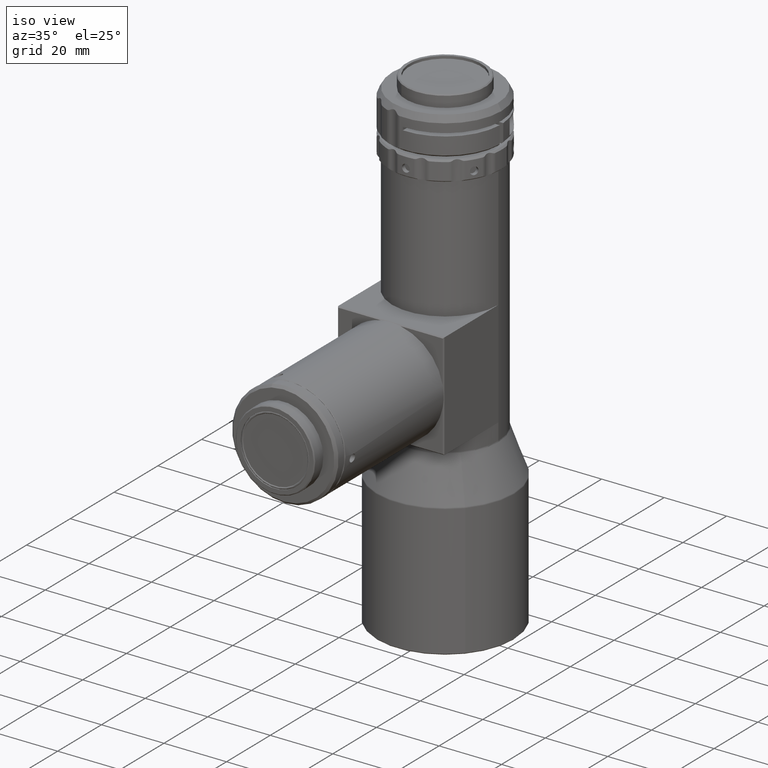
[diagram: clean part render]
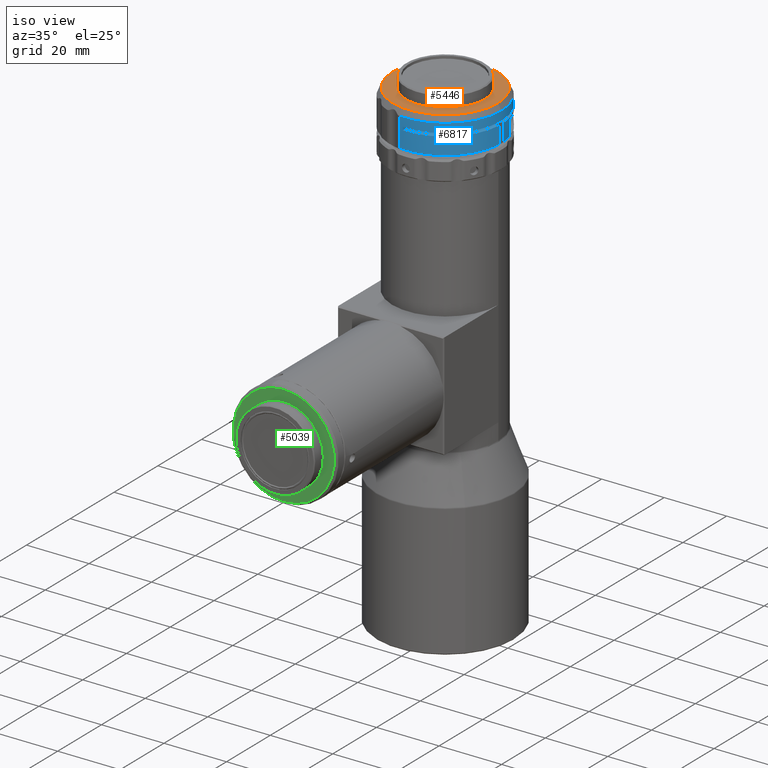
[diagram: same view with three faces highlighted in distinct colors, each labeled with its STEP entity id]
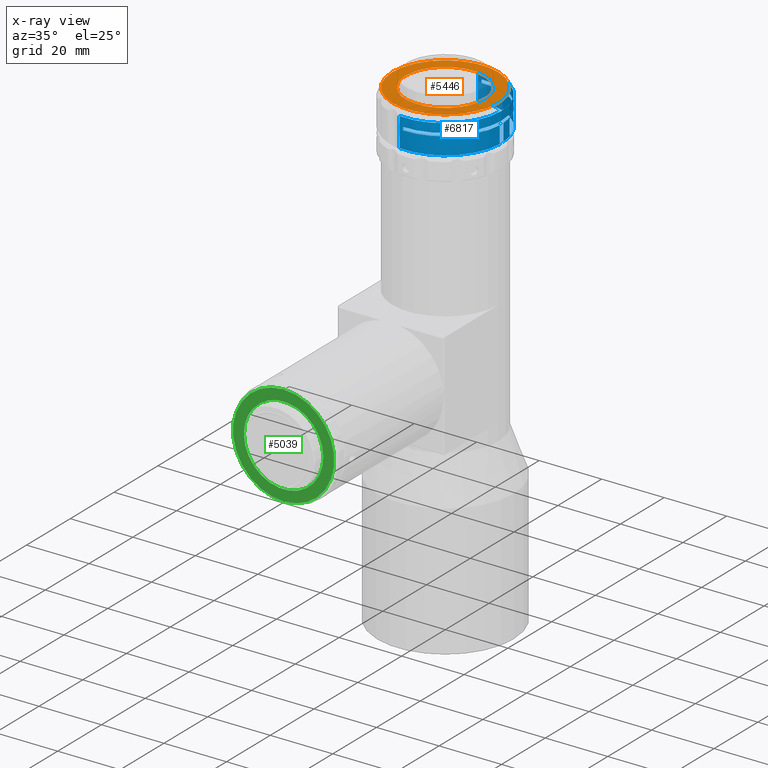
[diagram: x-ray of the same camera — body ghosted, the three highlighted faces saturated]
A machine part, iso view with three faces highlighted in distinct colors.
The next image is the same camera in x-ray (body ghosted, the three faces saturated) — at least one of them is partly hidden behind the body in this view.
Their STEP definitions:

[orange] entity #5446 — the highlighted planar face has unit normal (0, 0, -1).
#347 = DIRECTION ( 'NONE',  ( 2.463942195970224100E-016, 2.161748815651533200E-017, -1.000000000000000000 ) ) ;
#613 = EDGE_LOOP ( 'NONE', ( #3578, #7807 ) ) ;
#1088 = DIRECTION ( 'NONE',  ( -2.463942195970224100E-016, -2.161748815651533200E-017, 1.000000000000000000 ) ) ;
#1170 = ORIENTED_EDGE ( 'NONE', *, *, #7407, .F. ) ;
#1217 = VERTEX_POINT ( 'NONE', #2162 ) ;
#1938 = CARTESIAN_POINT ( 'NONE',  ( -1.294106439956090900E-014, -5.514569573549637300E-014, 98.14130850271087100 ) ) ;
#2041 = DIRECTION ( 'NONE',  ( -1.000000000000000000, 0.0000000000000000000, 0.0000000000000000000 ) ) ;
#2101 = VERTEX_POINT ( 'NONE', #4093 ) ;
#2130 = CARTESIAN_POINT ( 'NONE',  ( -1.294106439956089400E-014, -5.514569573549637300E-014, 98.14130850271087100 ) ) ;
#2162 = CARTESIAN_POINT ( 'NONE',  ( -16.84529946162077600, -5.478154267389183200E-014, 98.14130850271087100 ) ) ;
#2619 = EDGE_CURVE ( 'NONE', #6270, #2101, #4076, .T. ) ;
#2642 = DIRECTION ( 'NONE',  ( -1.000000000000000000, 0.0000000000000000000, 0.0000000000000000000 ) ) ;
#2843 = AXIS2_PLACEMENT_3D ( 'NONE', #5073, #1088, #2642 ) ;
#3076 = DIRECTION ( 'NONE',  ( 2.463942195970224100E-016, 2.161748815651533200E-017, -1.000000000000000000 ) ) ;
#3371 = CIRCLE ( 'NONE', #2843, 12.69999999999999900 ) ;
#3578 = ORIENTED_EDGE ( 'NONE', *, *, #7078, .F. ) ;
#3676 = EDGE_CURVE ( 'NONE', #1217, #5986, #4455, .T. ) ;
#3845 = DIRECTION ( 'NONE',  ( -1.000000000000000000, 2.161748815651540900E-017, 0.0000000000000000000 ) ) ;
#3924 = CARTESIAN_POINT ( 'NONE',  ( -6.373982340061597400, -10.98464151115475800, 98.14130850271087100 ) ) ;
#4076 = CIRCLE ( 'NONE', #6727, 12.69999999999999900 ) ;
#4093 = CARTESIAN_POINT ( 'NONE',  ( 6.373982340061568900, 10.98464151115464600, 98.14130850271087100 ) ) ;
#4455 = CIRCLE ( 'NONE', #4864, 16.84529946162076200 ) ;
#4551 = ORIENTED_EDGE ( 'NONE', *, *, #3676, .F. ) ;
#4799 = CARTESIAN_POINT ( 'NONE',  ( -1.294106439956089400E-014, -5.514569573549637300E-014, 98.14130850271087100 ) ) ;
#4864 = AXIS2_PLACEMENT_3D ( 'NONE', #2130, #3076, #3845 ) ;
#4898 = AXIS2_PLACEMENT_3D ( 'NONE', #4799, #8098, #10550 ) ;
#5071 = CARTESIAN_POINT ( 'NONE',  ( 16.84529946162075100, -5.336705294900052500E-014, 98.14130850271087100 ) ) ;
#5073 = CARTESIAN_POINT ( 'NONE',  ( -1.294106439956090900E-014, -5.514569573549637300E-014, 98.14130850271087100 ) ) ;
#5318 = AXIS2_PLACEMENT_3D ( 'NONE', #6098, #347, #8527 ) ;
#5446 = ADVANCED_FACE ( 'NONE', ( #7868, #5451 ), #7585, .F. ) ;
#5451 = FACE_OUTER_BOUND ( 'NONE', #5868, .T. ) ;
#5868 = EDGE_LOOP ( 'NONE', ( #4551, #1170 ) ) ;
#5986 = VERTEX_POINT ( 'NONE', #5071 ) ;
#6098 = CARTESIAN_POINT ( 'NONE',  ( -1.260189495805402300E-014, 16.84529946162070900, 98.14130850271087100 ) ) ;
#6120 = DIRECTION ( 'NONE',  ( -2.463942195970224100E-016, -2.161748815651533200E-017, 1.000000000000000000 ) ) ;
#6270 = VERTEX_POINT ( 'NONE', #3924 ) ;
#6727 = AXIS2_PLACEMENT_3D ( 'NONE', #1938, #6120, #2041 ) ;
#7078 = EDGE_CURVE ( 'NONE', #2101, #6270, #3371, .T. ) ;
#7407 = EDGE_CURVE ( 'NONE', #5986, #1217, #8215, .T. ) ;
#7585 = PLANE ( 'NONE',  #5318 ) ;
#7807 = ORIENTED_EDGE ( 'NONE', *, *, #2619, .F. ) ;
#7868 = FACE_BOUND ( 'NONE', #613, .T. ) ;
#8098 = DIRECTION ( 'NONE',  ( 2.463942195970224100E-016, 2.161748815651533200E-017, -1.000000000000000000 ) ) ;
#8215 = CIRCLE ( 'NONE', #4898, 16.84529946162076200 ) ;
#8527 = DIRECTION ( 'NONE',  ( -1.000000000000000000, 2.161748815651533200E-017, -2.463942195970224100E-016 ) ) ;
#10550 = DIRECTION ( 'NONE',  ( -1.000000000000000000, 2.161748815651540900E-017, 0.0000000000000000000 ) ) ;

[blue] entity #6817 — the highlighted cylindrical surface (partial cylindrical patch) has radius 18 mm, axis along (0, 0, -1).
#25 = CARTESIAN_POINT ( 'NONE',  ( 15.39999999999999000, 9.318798205777346400, 87.14130850271087100 ) ) ;
#44 = LINE ( 'NONE', #6223, #433 ) ;
#49 = EDGE_CURVE ( 'NONE', #7548, #10049, #2143, .T. ) ;
#117 = VERTEX_POINT ( 'NONE', #2863 ) ;
#126 = CARTESIAN_POINT ( 'NONE',  ( -1.023072798399364900E-014, -5.490790336577470300E-014, 87.14130850271087100 ) ) ;
#185 = CIRCLE ( 'NONE', #3396, 18.00000000000000000 ) ;
#208 = CARTESIAN_POINT ( 'NONE',  ( -1.015680971811454100E-014, -5.490141811932775300E-014, 86.84130850271087400 ) ) ;
#255 = CARTESIAN_POINT ( 'NONE',  ( -1.175837214549518600E-014, -5.504193179234510000E-014, 93.34130850271085900 ) ) ;
#331 = ORIENTED_EDGE ( 'NONE', *, *, #871, .T. ) ;
#373 = CARTESIAN_POINT ( 'NONE',  ( -1.141342023805935200E-014, -5.501166730892597700E-014, 91.94130850271085400 ) ) ;
#376 = CARTESIAN_POINT ( 'NONE',  ( 13.73189169664074600, 11.63893459891165300, 91.27497873940394900 ) ) ;
#418 = VECTOR ( 'NONE', #5874, 1000.000000000000000 ) ;
#433 = VECTOR ( 'NONE', #9437, 1000.000000000000000 ) ;
#546 = LINE ( 'NONE', #5763, #418 ) ;
#590 = CARTESIAN_POINT ( 'NONE',  ( -1.003361260831602900E-014, -5.489060937524949300E-014, 86.34130850271085900 ) ) ;
#603 = CIRCLE ( 'NONE', #9645, 18.00000000000000000 ) ;
#619 = DIRECTION ( 'NONE',  ( -1.000000000000000000, 2.161748815651542700E-017, 0.0000000000000000000 ) ) ;
#689 = DIRECTION ( 'NONE',  ( 2.463942195970224100E-016, 2.161748815651533200E-017, -1.000000000000000000 ) ) ;
#740 = EDGE_CURVE ( 'NONE', #117, #4113, #603, .T. ) ;
#749 = CARTESIAN_POINT ( 'NONE',  ( 17.98221343439122000, 0.7999999999999448700, 92.34130850271087400 ) ) ;
#821 = CARTESIAN_POINT ( 'NONE',  ( -2.101199788604772400, -17.87693931992749400, 86.84130850271087400 ) ) ;
#871 = EDGE_CURVE ( 'NONE', #5311, #6888, #9849, .T. ) ;
#992 = DIRECTION ( 'NONE',  ( 2.463942195970224100E-016, 2.161748815651533200E-017, -1.000000000000000000 ) ) ;
#1097 = CARTESIAN_POINT ( 'NONE',  ( 13.13619749648753500, 12.30635500989819800, 88.71828045628531400 ) ) ;
#1114 = LINE ( 'NONE', #9914, #2246 ) ;
#1168 = CARTESIAN_POINT ( 'NONE',  ( 14.46284105832442900, 10.71762024261757600, 87.32762184108011600 ) ) ;
#1188 = EDGE_CURVE ( 'NONE', #5666, #117, #9469, .T. ) ;
#1204 = VERTEX_POINT ( 'NONE', #3639 ) ;
#1284 = VERTEX_POINT ( 'NONE', #2289 ) ;
#1320 = CARTESIAN_POINT ( 'NONE',  ( -1.000000000000012000, -17.97220075561148500, 92.34130850271087400 ) ) ;
#1418 = EDGE_CURVE ( 'NONE', #9223, #3102, #8704, .T. ) ;
#1563 = CARTESIAN_POINT ( 'NONE',  ( -1.151197792589816300E-014, -5.502031430418858500E-014, 92.34130850271087400 ) ) ;
#1598 = DIRECTION ( 'NONE',  ( -1.000000000000000000, 2.161748815651542700E-017, 0.0000000000000000000 ) ) ;
#1627 = DIRECTION ( 'NONE',  ( -1.000000000000000000, 2.161748815651542700E-017, 0.0000000000000000000 ) ) ;
#1678 = ORIENTED_EDGE ( 'NONE', *, *, #8008, .F. ) ;
#1721 = CARTESIAN_POINT ( 'NONE',  ( -2.101199788604774600, -17.87693931992749400, 96.14130850271087100 ) ) ;
#1802 = VECTOR ( 'NONE', #10030, 1000.000000000000000 ) ;
#1917 = CARTESIAN_POINT ( 'NONE',  ( 12.99995471710555600, 12.44994688171525100, 89.43597379886495000 ) ) ;
#1947 = ORIENTED_EDGE ( 'NONE', *, *, #8066, .F. ) ;
#1952 = DIRECTION ( 'NONE',  ( -2.463942195970224100E-016, -2.161748815651533200E-017, 1.000000000000000000 ) ) ;
#1987 = ORIENTED_EDGE ( 'NONE', *, *, #740, .T. ) ;
#1993 = CARTESIAN_POINT ( 'NONE',  ( 13.03493637566578100, 12.41333333399717600, 89.11971181505400400 ) ) ;
#2005 = EDGE_LOOP ( 'NONE', ( #4278, #8730, #1947, #1678 ) ) ;
#2022 = CARTESIAN_POINT ( 'NONE',  ( 14.09580622404535400, 11.19577570137284900, 91.56167563274348700 ) ) ;
#2143 = CIRCLE ( 'NONE', #8269, 18.00000000000000000 ) ;
#2203 = CIRCLE ( 'NONE', #2368, 18.00000000000000000 ) ;
#2233 = AXIS2_PLACEMENT_3D ( 'NONE', #590, #7937, #8080 ) ;
#2246 = VECTOR ( 'NONE', #992, 1000.000000000000000 ) ;
#2289 = CARTESIAN_POINT ( 'NONE',  ( -1.000000000000011800, 17.97220075561138900, 92.34130850271087400 ) ) ;
#2290 = VERTEX_POINT ( 'NONE', #25 ) ;
#2368 = AXIS2_PLACEMENT_3D ( 'NONE', #126, #3408, #5806 ) ;
#2448 = ORIENTED_EDGE ( 'NONE', *, *, #1188, .T. ) ;
#2500 = CARTESIAN_POINT ( 'NONE',  ( -1.000000000000012000, 17.97220075561138900, 93.34130850271085900 ) ) ;
#2520 = DIRECTION ( 'NONE',  ( 2.463942195970224100E-016, 2.161748815651533200E-017, -1.000000000000000000 ) ) ;
#2526 = VERTEX_POINT ( 'NONE', #749 ) ;
#2691 = CARTESIAN_POINT ( 'NONE',  ( 14.09313028830381700, 11.19915853133355700, 87.52260336358595800 ) ) ;
#2703 = DIRECTION ( 'NONE',  ( 1.000000000000000000, -2.161748815651542700E-017, 0.0000000000000000000 ) ) ;
#2759 = CARTESIAN_POINT ( 'NONE',  ( 13.05600840073509300, 12.39121298396675800, 89.01571586805582100 ) ) ;
#2811 = CIRCLE ( 'NONE', #4651, 18.00000000000000000 ) ;
#2825 = EDGE_LOOP ( 'NONE', ( #8550, #2448, #1987, #5103, #9638, #8073, #9800, #5093, #7525, #331, #7275, #4881, #6695 ) ) ;
#2828 = CARTESIAN_POINT ( 'NONE',  ( 14.21861369653665500, 11.03958247461050500, 91.63488835019417400 ) ) ;
#2863 = CARTESIAN_POINT ( 'NONE',  ( -2.101199788604772900, 17.87693931992738400, 96.14130850271087100 ) ) ;
#2927 = DIRECTION ( 'NONE',  ( 2.463942195970224100E-016, 2.161748815651533200E-017, -1.000000000000000000 ) ) ;
#3041 = VECTOR ( 'NONE', #8174, 1000.000000000000000 ) ;
#3054 = EDGE_CURVE ( 'NONE', #8569, #7548, #9444, .T. ) ;
#3102 = VERTEX_POINT ( 'NONE', #7522 ) ;
#3162 = AXIS2_PLACEMENT_3D ( 'NONE', #1563, #2520, #1627 ) ;
#3261 = CARTESIAN_POINT ( 'NONE',  ( 17.98221343439122000, 0.7999999999999423100, 86.34130850271085900 ) ) ;
#3310 = DIRECTION ( 'NONE',  ( 2.463942195970224100E-016, 2.161748815651533200E-017, -1.000000000000000000 ) ) ;
#3386 = EDGE_CURVE ( 'NONE', #2526, #8166, #4199, .T. ) ;
#3396 = AXIS2_PLACEMENT_3D ( 'NONE', #10317, #7959, #7035 ) ;
#3408 = DIRECTION ( 'NONE',  ( -2.463942195970224100E-016, -2.161748815651533200E-017, 1.000000000000000000 ) ) ;
#3524 = CARTESIAN_POINT ( 'NONE',  ( 13.39752690094283200, 12.02184557735007100, 88.20517563954871300 ) ) ;
#3554 = CARTESIAN_POINT ( 'NONE',  ( 15.39999999999999000, 9.318798205777346400, 87.14130850271087100 ) ) ;
#3594 = CARTESIAN_POINT ( 'NONE',  ( 13.05653756154392300, 12.39065645306429500, 90.06933450862494800 ) ) ;
#3633 = CARTESIAN_POINT ( 'NONE',  ( 13.00694898274458900, 12.44265602429239900, 89.33017692524083500 ) ) ;
#3639 = CARTESIAN_POINT ( 'NONE',  ( 17.98221343439120900, -0.8000000000000593300, 92.34130850271087400 ) ) ;
#3668 = CARTESIAN_POINT ( 'NONE',  ( 13.03569228350661800, 12.41253995942074400, 89.96710890710538400 ) ) ;
#3699 = CARTESIAN_POINT ( 'NONE',  ( 17.99999999999998600, -5.328721130753538800E-014, 96.14130850271087100 ) ) ;
#3744 = CARTESIAN_POINT ( 'NONE',  ( 15.39999999999998800, 9.318798205777346400, 91.94130850271085400 ) ) ;
#3834 = EDGE_CURVE ( 'NONE', #1204, #4361, #9301, .T. ) ;
#4113 = VERTEX_POINT ( 'NONE', #3699 ) ;
#4182 = CARTESIAN_POINT ( 'NONE',  ( -1.000000000000010400, -17.97220075561148500, 86.34130850271085900 ) ) ;
#4199 = LINE ( 'NONE', #3261, #7246 ) ;
#4278 = ORIENTED_EDGE ( 'NONE', *, *, #1418, .F. ) ;
#4361 = VERTEX_POINT ( 'NONE', #1320 ) ;
#4372 = EDGE_CURVE ( 'NONE', #4113, #8569, #7758, .T. ) ;
#4454 = CARTESIAN_POINT ( 'NONE',  ( 13.14375903775780500, 12.29815711728528200, 90.36542016506494700 ) ) ;
#4496 = CARTESIAN_POINT ( 'NONE',  ( 14.58811905590236400, 10.54659824317575500, 91.80333683156348500 ) ) ;
#4651 = AXIS2_PLACEMENT_3D ( 'NONE', #10496, #689, #619 ) ;
#4655 = FACE_BOUND ( 'NONE', #2005, .T. ) ;
#4677 = DIRECTION ( 'NONE',  ( -1.000000000000000000, 2.161748815651542700E-017, 0.0000000000000000000 ) ) ;
#4852 = EDGE_CURVE ( 'NONE', #6888, #1284, #1114, .T. ) ;
#4881 = ORIENTED_EDGE ( 'NONE', *, *, #10064, .T. ) ;
#5093 = ORIENTED_EDGE ( 'NONE', *, *, #3834, .T. ) ;
#5103 = ORIENTED_EDGE ( 'NONE', *, *, #4372, .T. ) ;
#5218 = AXIS2_PLACEMENT_3D ( 'NONE', #255, #7602, #2703 ) ;
#5277 = CARTESIAN_POINT ( 'NONE',  ( 13.40045959611205400, 12.01859367772187200, 90.88203604022187700 ) ) ;
#5311 = VERTEX_POINT ( 'NONE', #8931 ) ;
#5410 = CARTESIAN_POINT ( 'NONE',  ( -1.244827596036684800E-014, -5.510246075918334500E-014, 96.14130850271087100 ) ) ;
#5419 = DIRECTION ( 'NONE',  ( -1.000000000000000000, 2.161748815651542700E-017, 0.0000000000000000000 ) ) ;
#5478 = CARTESIAN_POINT ( 'NONE',  ( -2.101199788604770200, 17.87693931992738400, 86.84130850271087400 ) ) ;
#5666 = VERTEX_POINT ( 'NONE', #5478 ) ;
#5668 = DIRECTION ( 'NONE',  ( 2.463942195970224100E-016, 2.161748815651533200E-017, -1.000000000000000000 ) ) ;
#5705 = CARTESIAN_POINT ( 'NONE',  ( -2.101199788604772400, -17.87693931992749400, 86.34130850271085900 ) ) ;
#5763 = CARTESIAN_POINT ( 'NONE',  ( 17.42842505793336400, 4.499999999999944900, 86.34130850271085900 ) ) ;
#5806 = DIRECTION ( 'NONE',  ( 1.000000000000000000, -2.161748815651542700E-017, 0.0000000000000000000 ) ) ;
#5874 = DIRECTION ( 'NONE',  ( 2.463942195970224100E-016, 2.161748815651533200E-017, -1.000000000000000000 ) ) ;
#6027 = CARTESIAN_POINT ( 'NONE',  ( 14.21761414912231600, 11.04086061183628300, 87.44831083967142100 ) ) ;
#6065 = CARTESIAN_POINT ( 'NONE',  ( 14.58455138365338200, 10.55150715398947600, 87.28059685573219900 ) ) ;
#6101 = CARTESIAN_POINT ( 'NONE',  ( 13.85284475310800900, 11.49503540262380100, 91.38226352317434500 ) ) ;
#6223 = CARTESIAN_POINT ( 'NONE',  ( 17.98221343439120900, -0.8000000000000592200, 86.34130850271085900 ) ) ;
#6290 = DIRECTION ( 'NONE',  ( 2.463942195970224100E-016, 2.161748815651533200E-017, -1.000000000000000000 ) ) ;
#6489 = CARTESIAN_POINT ( 'NONE',  ( -1.244827596036684800E-014, -5.510246075918334500E-014, 96.14130850271087100 ) ) ;
#6562 = FACE_OUTER_BOUND ( 'NONE', #2825, .T. ) ;
#6695 = ORIENTED_EDGE ( 'NONE', *, *, #3386, .T. ) ;
#6763 = CARTESIAN_POINT ( 'NONE',  ( 15.18016876128867800, 9.682085509719103200, 87.14130850271088500 ) ) ;
#6817 = ADVANCED_FACE ( 'NONE', ( #4655, #6562 ), #8502, .T. ) ;
#6841 = CARTESIAN_POINT ( 'NONE',  ( 13.84901737186738500, 11.49966047180363800, 87.70350226447216400 ) ) ;
#6867 = CARTESIAN_POINT ( 'NONE',  ( 14.94517496646418300, 10.04069292201709000, 87.17145015765825600 ) ) ;
#6888 = VERTEX_POINT ( 'NONE', #2500 ) ;
#6908 = CARTESIAN_POINT ( 'NONE',  ( 13.50383753155617800, 11.90278596279832800, 88.06038023197294300 ) ) ;
#6945 = CARTESIAN_POINT ( 'NONE',  ( 14.95064444190487100, 10.03264866026427300, 91.91233589481147700 ) ) ;
#7035 = DIRECTION ( 'NONE',  ( 1.000000000000000000, -2.161748815651542700E-017, 0.0000000000000000000 ) ) ;
#7156 = VECTOR ( 'NONE', #7282, 1000.000000000000000 ) ;
#7211 = EDGE_CURVE ( 'NONE', #8166, #5666, #185, .T. ) ;
#7246 = VECTOR ( 'NONE', #5668, 1000.000000000000000 ) ;
#7275 = ORIENTED_EDGE ( 'NONE', *, *, #4852, .T. ) ;
#7282 = DIRECTION ( 'NONE',  ( -2.463942195970224100E-016, -2.161748815651533200E-017, 1.000000000000000000 ) ) ;
#7522 = CARTESIAN_POINT ( 'NONE',  ( 17.42842505793336400, 4.499999999999941400, 91.94130850271085400 ) ) ;
#7525 = ORIENTED_EDGE ( 'NONE', *, *, #10235, .T. ) ;
#7548 = VERTEX_POINT ( 'NONE', #821 ) ;
#7602 = DIRECTION ( 'NONE',  ( -2.463942195970224100E-016, -2.161748815651533200E-017, 1.000000000000000000 ) ) ;
#7692 = CARTESIAN_POINT ( 'NONE',  ( 17.98221343439122000, 0.7999999999999423100, 86.84130850271087400 ) ) ;
#7736 = CARTESIAN_POINT ( 'NONE',  ( 13.11044792617413700, 12.33360026954610300, 90.26834286545846500 ) ) ;
#7758 = CIRCLE ( 'NONE', #9801, 18.00000000000000000 ) ;
#7937 = DIRECTION ( 'NONE',  ( 2.463942195970224100E-016, 2.161748815651533200E-017, -1.000000000000000000 ) ) ;
#7959 = DIRECTION ( 'NONE',  ( -2.463942195970224100E-016, -2.161748815651533200E-017, 1.000000000000000000 ) ) ;
#8008 = EDGE_CURVE ( 'NONE', #3102, #8498, #546, .T. ) ;
#8066 = EDGE_CURVE ( 'NONE', #8498, #2290, #2203, .T. ) ;
#8073 = ORIENTED_EDGE ( 'NONE', *, *, #49, .T. ) ;
#8080 = DIRECTION ( 'NONE',  ( -1.000000000000000000, 2.161748815651542700E-017, 0.0000000000000000000 ) ) ;
#8166 = VERTEX_POINT ( 'NONE', #7692 ) ;
#8174 = DIRECTION ( 'NONE',  ( 2.463942195970224100E-016, 2.161748815651533200E-017, -1.000000000000000000 ) ) ;
#8269 = AXIS2_PLACEMENT_3D ( 'NONE', #208, #1952, #10136 ) ;
#8341 = EDGE_CURVE ( 'NONE', #10049, #1204, #44, .T. ) ;
#8418 = CARTESIAN_POINT ( 'NONE',  ( 13.73016750537301400, 11.64098114547279300, 87.80918838860399900 ) ) ;
#8497 = CARTESIAN_POINT ( 'NONE',  ( 13.00734154443919800, 12.44224607941818500, 89.75681367129406900 ) ) ;
#8498 = VERTEX_POINT ( 'NONE', #10591 ) ;
#8502 = CYLINDRICAL_SURFACE ( 'NONE', #2233, 18.00000000000000000 ) ;
#8514 = CARTESIAN_POINT ( 'NONE',  ( 15.39999999999998800, 9.318798205777346400, 91.94130850271085400 ) ) ;
#8530 = CARTESIAN_POINT ( 'NONE',  ( 13.00004572214628100, 12.44985185560183500, 89.64869669568297200 ) ) ;
#8550 = ORIENTED_EDGE ( 'NONE', *, *, #7211, .T. ) ;
#8566 = CARTESIAN_POINT ( 'NONE',  ( 14.46440212819731900, 10.71552274687839200, 91.75567224836724700 ) ) ;
#8569 = VERTEX_POINT ( 'NONE', #1721 ) ;
#8704 = CIRCLE ( 'NONE', #9096, 18.00000000000000000 ) ;
#8730 = ORIENTED_EDGE ( 'NONE', *, *, #9924, .F. ) ;
#8734 = CARTESIAN_POINT ( 'NONE',  ( 15.18122560073089200, 9.680339004745972500, 91.94130850271089600 ) ) ;
#8770 = CARTESIAN_POINT ( 'NONE',  ( 17.98221343439120900, -0.8000000000000592200, 86.84130850271087400 ) ) ;
#8931 = CARTESIAN_POINT ( 'NONE',  ( -1.000000000000012200, -17.97220075561148500, 93.34130850271085900 ) ) ;
#9096 = AXIS2_PLACEMENT_3D ( 'NONE', #373, #2927, #5419 ) ;
#9223 = VERTEX_POINT ( 'NONE', #8514 ) ;
#9230 = CARTESIAN_POINT ( 'NONE',  ( 13.21433356041937800, 12.22292463779076300, 88.53234281679262100 ) ) ;
#9301 = CIRCLE ( 'NONE', #3162, 18.00000000000000000 ) ;
#9336 = LINE ( 'NONE', #4182, #7156 ) ;
#9339 = CARTESIAN_POINT ( 'NONE',  ( 13.21922310835597300, 12.21700497403443800, 90.54828191874474900 ) ) ;
#9437 = DIRECTION ( 'NONE',  ( -2.463942195970224100E-016, -2.161748815651533200E-017, 1.000000000000000000 ) ) ;
#9444 = LINE ( 'NONE', #5705, #3041 ) ;
#9469 = LINE ( 'NONE', #10098, #1802 ) ;
#9638 = ORIENTED_EDGE ( 'NONE', *, *, #3054, .T. ) ;
#9645 = AXIS2_PLACEMENT_3D ( 'NONE', #6489, #3310, #1598 ) ;
#9800 = ORIENTED_EDGE ( 'NONE', *, *, #8341, .T. ) ;
#9801 = AXIS2_PLACEMENT_3D ( 'NONE', #5410, #6290, #4677 ) ;
#9849 = CIRCLE ( 'NONE', #5218, 18.00000000000000000 ) ;
#9914 = CARTESIAN_POINT ( 'NONE',  ( -1.000000000000010000, 17.97220075561138600, 86.34130850271085900 ) ) ;
#9924 = EDGE_CURVE ( 'NONE', #2290, #9223, #10266, .T. ) ;
#10030 = DIRECTION ( 'NONE',  ( -2.463942195970224100E-016, -2.161748815651533200E-017, 1.000000000000000000 ) ) ;
#10049 = VERTEX_POINT ( 'NONE', #8770 ) ;
#10064 = EDGE_CURVE ( 'NONE', #1284, #2526, #2811, .T. ) ;
#10098 = CARTESIAN_POINT ( 'NONE',  ( -2.101199788604769700, 17.87693931992738800, 86.34130850271085900 ) ) ;
#10136 = DIRECTION ( 'NONE',  ( 1.000000000000000000, -2.161748815651542700E-017, 0.0000000000000000000 ) ) ;
#10186 = CARTESIAN_POINT ( 'NONE',  ( 13.26156273270492000, 12.17110026788201600, 90.63493279514413800 ) ) ;
#10215 = CARTESIAN_POINT ( 'NONE',  ( 13.50672511718800600, 11.89949682863675800, 91.02579764697719600 ) ) ;
#10235 = EDGE_CURVE ( 'NONE', #4361, #5311, #9336, .T. ) ;
#10266 = B_SPLINE_CURVE_WITH_KNOTS ( 'NONE', 3,
 ( #3554, #6763, #6867, #6065, #1168, #6027, #2691, #6841, #8418, #6908, #3524, #9230, #1097, #2759, #1993, #3633, #1917, #8530, #8497, #3668, #3594, #7736, #4454, #9339, #10186, #5277, #10215, #376, #6101, #2022, #2828, #8566, #4496, #6945, #8734, #3744 ),
 .UNSPECIFIED., .F., .F.,
 ( 4, 2, 2, 2, 2, 2, 2, 2, 2, 2, 2, 2, 2, 2, 2, 2, 2, 4 ),
 ( 0.005355808340054676400, 0.006612485837347355100, 0.007240824585993694400, 0.007869163334640032900, 0.008497502083286373100, 0.009125840831932713300, 0.009754179580579051800, 0.01006834895490222100, 0.01038251832922539000, 0.01069668770354856100, 0.01101085707787173200, 0.01132502645219490200, 0.01163919582651807100, 0.01226753457516440700, 0.01289587332381074400, 0.01352421207245708300, 0.01415255082110341800, 0.01540922831839609500 ),
 .UNSPECIFIED. ) ;
#10317 = CARTESIAN_POINT ( 'NONE',  ( -1.015680971811454100E-014, -5.490141811932775300E-014, 86.84130850271087400 ) ) ;
#10496 = CARTESIAN_POINT ( 'NONE',  ( -1.151197792589816300E-014, -5.502031430418858500E-014, 92.34130850271087400 ) ) ;
#10591 = CARTESIAN_POINT ( 'NONE',  ( 17.42842505793336400, 4.499999999999941400, 87.14130850271087100 ) ) ;

[green] entity #5039 — the highlighted planar face has unit normal (0, 1, 0).
#284 = ORIENTED_EDGE ( 'NONE', *, *, #8929, .T. ) ;
#533 = VERTEX_POINT ( 'NONE', #6272 ) ;
#564 = DIRECTION ( 'NONE',  ( -5.551115123125802400E-017, -1.000000000000000000, -2.161748815651545200E-017 ) ) ;
#815 = AXIS2_PLACEMENT_3D ( 'NONE', #4665, #564, #7906 ) ;
#1068 = CIRCLE ( 'NONE', #9831, 16.20000000000001400 ) ;
#1361 = FACE_OUTER_BOUND ( 'NONE', #9023, .T. ) ;
#1397 = CARTESIAN_POINT ( 'NONE',  ( 1.417262566819786000E-015, -73.86000000000005600, 22.83130850271084700 ) ) ;
#1642 = EDGE_LOOP ( 'NONE', ( #6005, #8582 ) ) ;
#1818 = CARTESIAN_POINT ( 'NONE',  ( 1.417262566819786000E-015, -73.86000000000005600, 22.83130850271084700 ) ) ;
#1916 = AXIS2_PLACEMENT_3D ( 'NONE', #7253, #4793, #6547 ) ;
#2490 = CARTESIAN_POINT ( 'NONE',  ( 1.450761901202285400, -73.86000000000005600, 35.44817379905208600 ) ) ;
#3861 = CIRCLE ( 'NONE', #815, 12.69999999999999900 ) ;
#3917 = FACE_BOUND ( 'NONE', #1642, .T. ) ;
#3930 = DIRECTION ( 'NONE',  ( -5.551115123125802400E-017, -1.000000000000000000, -2.161748815651545200E-017 ) ) ;
#4323 = DIRECTION ( 'NONE',  ( -5.551115123125802400E-017, -1.000000000000000000, -2.161748815651545200E-017 ) ) ;
#4353 = DIRECTION ( 'NONE',  ( 5.551115123125803700E-017, 1.000000000000000000, 2.161748815651539000E-017 ) ) ;
#4395 = VERTEX_POINT ( 'NONE', #9503 ) ;
#4665 = CARTESIAN_POINT ( 'NONE',  ( 7.484565577036452000E-016, -73.86000000000005600, 22.83130850271084700 ) ) ;
#4691 = CARTESIAN_POINT ( 'NONE',  ( -3.945059130021366700, -73.86000000000005600, 38.54361286778204500 ) ) ;
#4793 = DIRECTION ( 'NONE',  ( -5.551115123125802400E-017, -1.000000000000000000, -2.161748815651545200E-017 ) ) ;
#5039 = ADVANCED_FACE ( 'NONE', ( #3917, #1361 ), #9271, .F. ) ;
#5530 = AXIS2_PLACEMENT_3D ( 'NONE', #1818, #4323, #10040 ) ;
#5851 = AXIS2_PLACEMENT_3D ( 'NONE', #9342, #4353, #6846 ) ;
#6005 = ORIENTED_EDGE ( 'NONE', *, *, #9582, .F. ) ;
#6179 = CIRCLE ( 'NONE', #5530, 16.20000000000001400 ) ;
#6272 = CARTESIAN_POINT ( 'NONE',  ( 3.945059130021372000, -73.86000000000005600, 7.119004137639651100 ) ) ;
#6356 = DIRECTION ( 'NONE',  ( -0.2435221685198374100, 0.0000000000000000000, 0.9698953311772337000 ) ) ;
#6547 = DIRECTION ( 'NONE',  ( -1.000000000000000000, 0.0000000000000000000, 0.0000000000000000000 ) ) ;
#6846 = DIRECTION ( 'NONE',  ( -0.2435221685198374100, -7.448504909914824800E-018, 0.9698953311772337000 ) ) ;
#7077 = ORIENTED_EDGE ( 'NONE', *, *, #7633, .T. ) ;
#7253 = CARTESIAN_POINT ( 'NONE',  ( 7.484565577036452000E-016, -73.86000000000005600, 22.83130850271084700 ) ) ;
#7633 = EDGE_CURVE ( 'NONE', #7796, #533, #6179, .T. ) ;
#7681 = CIRCLE ( 'NONE', #1916, 12.69999999999999900 ) ;
#7796 = VERTEX_POINT ( 'NONE', #4691 ) ;
#7906 = DIRECTION ( 'NONE',  ( -1.000000000000000000, 0.0000000000000000000, 0.0000000000000000000 ) ) ;
#8582 = ORIENTED_EDGE ( 'NONE', *, *, #9355, .F. ) ;
#8929 = EDGE_CURVE ( 'NONE', #533, #7796, #1068, .T. ) ;
#9001 = VERTEX_POINT ( 'NONE', #2490 ) ;
#9023 = EDGE_LOOP ( 'NONE', ( #7077, #284 ) ) ;
#9271 = PLANE ( 'NONE',  #5851 ) ;
#9342 = CARTESIAN_POINT ( 'NONE',  ( 12.02670210659770500, -73.86000000000005600, 25.85098339235683100 ) ) ;
#9355 = EDGE_CURVE ( 'NONE', #4395, #9001, #3861, .T. ) ;
#9503 = CARTESIAN_POINT ( 'NONE',  ( -1.450761901202285900, -73.86000000000005600, 10.21444320636960700 ) ) ;
#9582 = EDGE_CURVE ( 'NONE', #9001, #4395, #7681, .T. ) ;
#9831 = AXIS2_PLACEMENT_3D ( 'NONE', #1397, #3930, #6356 ) ;
#10040 = DIRECTION ( 'NONE',  ( -0.2435221685198374100, 0.0000000000000000000, 0.9698953311772337000 ) ) ;